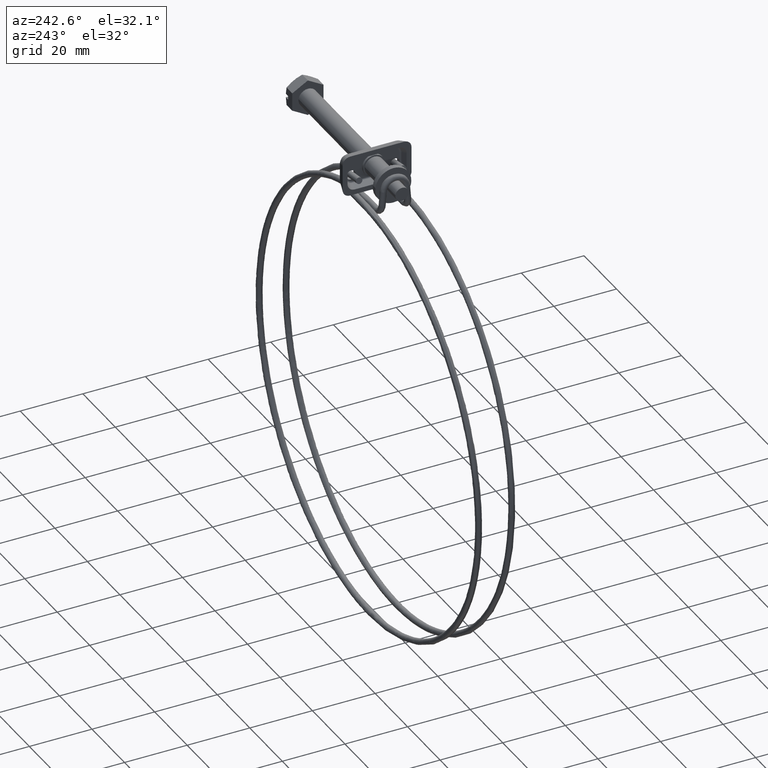
[diagram: clean part render]
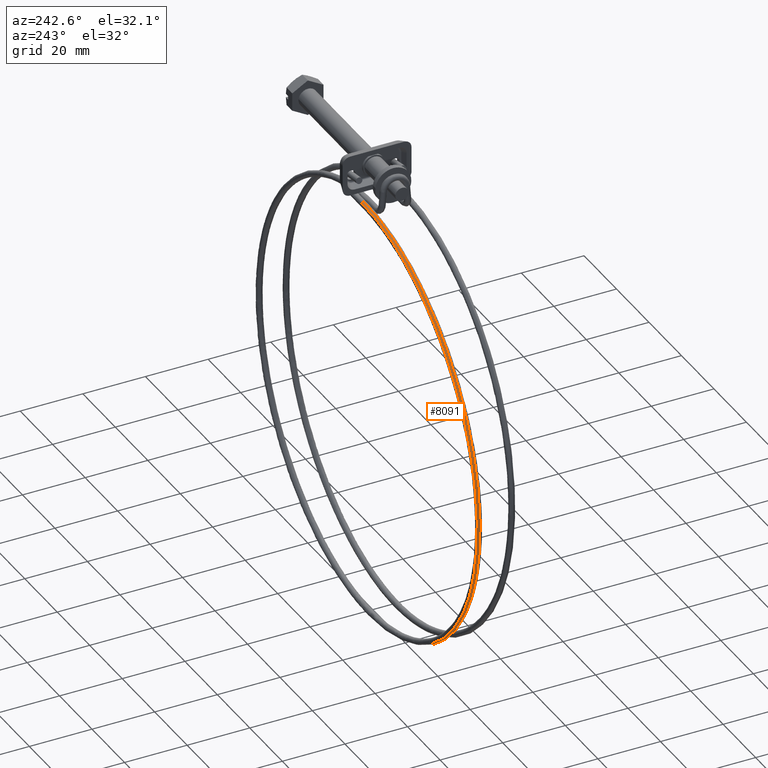
[diagram: same view with one face highlighted and labeled with its STEP entity id]
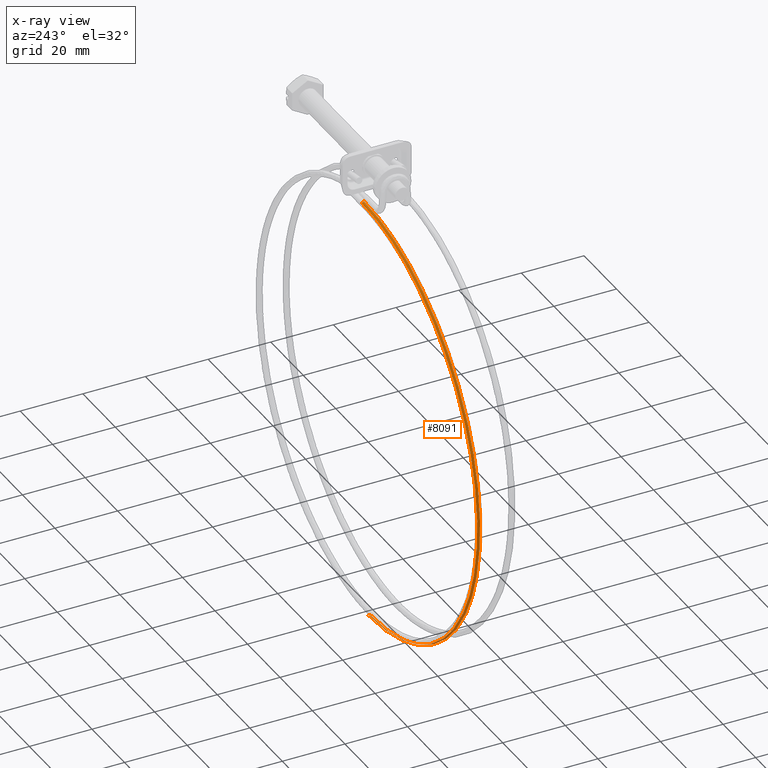
[diagram: x-ray of the same camera — body ghosted, the highlighted face saturated]
A machine part, auxiliary view. The second image highlights one B-rep face of the part: STEP entity #8091.
The next image is the same camera in x-ray: the body ghosted, the highlighted face saturated — about 0% of this face is hidden behind the body in this view.
In plain terms, the highlighted face is a freeform B-spline surface patch.
Its self-contained STEP definition (entity closure, byte-faithful):
#6027=CARTESIAN_POINT('',(-46.800000000001113,7.058718301789384,-7.187143854841273));
#6028=VERTEX_POINT('',#6027);
#6040=CARTESIAN_POINT('',(-46.800000000001113,6.339338735958525,-6.850431415097474));
#6041=VERTEX_POINT('',#6040);
#6042=CARTESIAN_POINT('',(-46.800000000001113,6.339338735958525,-6.850431415097474));
#6043=CARTESIAN_POINT('',(-46.800000000001113,6.601025441348690,-6.858111758452440));
#6044=CARTESIAN_POINT('',(-46.800000000001113,6.857939011329840,-6.973471516760230));
#6045=CARTESIAN_POINT('',(-46.800000000001113,7.044733017231790,-7.171561634227913));
#6046=CARTESIAN_POINT('',(-46.800000000001113,7.051790176536651,-7.179296910064643));
#6047=CARTESIAN_POINT('',(-46.800000000001113,7.058718301789313,-7.187143854841192));
#6048=B_SPLINE_CURVE_WITH_KNOTS('',3,(#6042,#6043,#6044,#6045,#6046,#6047),.UNSPECIFIED.,.F.,.U.,(4,2,4),(0.0,0.125000000000000,0.129999999999965),.UNSPECIFIED.);
#6049=EDGE_CURVE('',#6041,#6028,#6048,.T.);
#6728=CARTESIAN_POINT('',(-46.799999999998832,4.300002000001341,-145.850000999999990));
#6729=VERTEX_POINT('',#6728);
#6737=CARTESIAN_POINT('',(-46.799999999998832,5.028949982885202,-145.534537745304700));
#6738=VERTEX_POINT('',#6737);
#6739=CARTESIAN_POINT('',(-46.799999999998761,4.300002000001343,-145.850000999999990));
#6740=CARTESIAN_POINT('',(-46.799999999998747,4.561801387800491,-145.850001000000110));
#6741=CARTESIAN_POINT('',(-46.799999999998782,4.821988658764623,-145.742227903609890));
#6742=CARTESIAN_POINT('',(-46.799999999998782,5.014513586084808,-145.549702976289690));
#6743=CARTESIAN_POINT('',(-46.799999999998782,5.021794635740076,-145.542178063955110));
#6744=CARTESIAN_POINT('',(-46.799999999998782,5.028949982885187,-145.534537745304900));
#6745=B_SPLINE_CURVE_WITH_KNOTS('',3,(#6739,#6740,#6741,#6742,#6743,#6744),.UNSPECIFIED.,.F.,.U.,(4,2,4),(0.0,0.125000000000000,0.129999999999993),.UNSPECIFIED.);
#6746=EDGE_CURVE('',#6729,#6738,#6745,.T.);
#7927=CARTESIAN_POINT('',(-46.799999999998903,4.300002000001340,-145.850000999999990));
#7928=CARTESIAN_POINT('',(-55.899032411012463,4.300002481235882,-145.850000999875310));
#7929=CARTESIAN_POINT('',(-64.991502715377806,4.326541417004892,-144.041095449428010));
#7930=CARTESIAN_POINT('',(-81.801539032600957,4.428698620539128,-137.078141725315590));
#7931=CARTESIAN_POINT('',(-89.511003452659097,4.504276206803096,-131.926833569153590));
#7932=CARTESIAN_POINT('',(-102.376812641165800,4.693037538067994,-119.061011393708100));
#7933=CARTESIAN_POINT('',(-107.528096447832890,4.806147015522526,-111.351559391708510));
#7934=CARTESIAN_POINT('',(-114.491005628857910,5.052774964097260,-94.541594614845593));
#7935=CARTESIAN_POINT('',(-116.299892390311200,5.186196413664240,-85.447694751711353));
#7936=CARTESIAN_POINT('',(-116.299892390560100,5.453144322294270,-67.252737663387904));
#7937=CARTESIAN_POINT('',(-114.491005628858800,5.586565771863190,-58.158837800222898));
#7938=CARTESIAN_POINT('',(-107.528096447833900,5.833193720434034,-41.348873023422250));
#7939=CARTESIAN_POINT('',(-102.376812641416090,5.946303197890520,-33.639421021421683));
#7940=CARTESIAN_POINT('',(-89.511003452411700,6.135064529155420,-20.773598845914002));
#7941=CARTESIAN_POINT('',(-81.801539032665403,6.210642115413560,-15.622290689658071));
#7942=CARTESIAN_POINT('',(-64.991502715317807,6.312799318959466,-8.659336965794759));
#7943=CARTESIAN_POINT('',(-55.899032370692602,6.339698997477846,-6.850464863680401));
#7944=CARTESIAN_POINT('',(-46.800000000001113,6.339338735958525,-6.850431415097474));
#7945=B_SPLINE_CURVE_WITH_KNOTS('',3,(#7927,#7928,#7929,#7930,#7931,#7932,#7933,#7934,#7935,#7936,#7937,#7938,#7939,#7940,#7941,#7942,#7943,#7944),.UNSPECIFIED.,.F.,.U.,(4,2,2,2,2,2,2,2,4),(0.475350987641787,0.534770064741867,0.594189141841948,0.653608218942028,0.713027296042108,0.772446373142189,0.831865450242269,0.891284527342350,0.950703604442430),.UNSPECIFIED.);
#7946=EDGE_CURVE('',#6729,#6041,#7945,.T.);
#7952=CARTESIAN_POINT('',(-46.799999999998903,5.028949982885215,-145.534537745304590));
#7953=CARTESIAN_POINT('',(-55.856331321320233,5.028950461792921,-145.534537750304990));
#7954=CARTESIAN_POINT('',(-64.906131523301354,5.055364849920292,-143.734121421663590));
#7955=CARTESIAN_POINT('',(-81.637283337394138,5.157042660064676,-136.803842769311810));
#7956=CARTESIAN_POINT('',(-89.310571497898593,5.232265594295474,-131.676707414063200));
#7957=CARTESIAN_POINT('',(-102.116012060928500,5.420141224392043,-118.871253925047400));
#7958=CARTESIAN_POINT('',(-107.243127105831210,5.532720003293616,-111.197973914599200));
#7959=CARTESIAN_POINT('',(-114.173368775216700,5.778190860598096,-94.466875558103965));
#7960=CARTESIAN_POINT('',(-115.973769449143900,5.910986371520818,-85.415639175307902));
#7961=CARTESIAN_POINT('',(-115.973769449392900,6.176681913152489,-67.306042424840015));
#7962=CARTESIAN_POINT('',(-114.173368775162500,6.309477424075209,-58.254806042044287));
#7963=CARTESIAN_POINT('',(-107.243127105887200,6.554948281379689,-41.523707685549113));
#7964=CARTESIAN_POINT('',(-102.116012060951110,6.667527060279145,-33.850427675065582));
#7965=CARTESIAN_POINT('',(-89.310571497878840,6.855402690379976,-21.044974186118640));
#7966=CARTESIAN_POINT('',(-81.637283337520728,6.930625624603020,-15.917838830586730));
#7967=CARTESIAN_POINT('',(-64.906131523179113,7.032303434758657,-8.987560178731622));
#7968=CARTESIAN_POINT('',(-55.856331281248721,7.059077723735019,-7.187177068685294));
#7969=CARTESIAN_POINT('',(-46.800000000001113,7.058718301789456,-7.187143854841355));
#7970=B_SPLINE_CURVE_WITH_KNOTS('',3,(#7952,#7953,#7954,#7955,#7956,#7957,#7958,#7959,#7960,#7961,#7962,#7963,#7964,#7965,#7966,#7967,#7968,#7969),.UNSPECIFIED.,.F.,.U.,(4,2,2,2,2,2,2,2,4),(0.475350987641787,0.534770064741867,0.594189141841948,0.653608218942028,0.713027296042108,0.772446373142189,0.831865450242269,0.891284527342350,0.950703604442430),.UNSPECIFIED.);
#7971=EDGE_CURVE('',#6738,#6028,#7970,.T.);
#7976=CARTESIAN_POINT('',(-46.799999999998903,4.300002000001340,-145.850000999999990));
#7977=CARTESIAN_POINT('',(-46.799999999998903,4.561801387800490,-145.850000999999990));
#7978=CARTESIAN_POINT('',(-46.799999999998903,4.821988658764620,-145.742227903609600));
#7979=CARTESIAN_POINT('',(-46.799999999998903,5.014513586084815,-145.549702976289410));
#7980=CARTESIAN_POINT('',(-46.799999999998903,5.021794635740093,-145.542178063954790));
#7981=CARTESIAN_POINT('',(-46.799999999998903,5.028949982885215,-145.534537745304590));
#7982=CARTESIAN_POINT('',(-55.899032411012463,4.300002481235882,-145.850000999875310));
#7983=CARTESIAN_POINT('',(-55.898529541860697,4.561801868994510,-145.850001001742210));
#7984=CARTESIAN_POINT('',(-55.883919957177604,4.821989139159790,-145.742227907218590));
#7985=CARTESIAN_POINT('',(-55.858344505343567,5.014514065101018,-145.549702981192610));
#7986=CARTESIAN_POINT('',(-55.857345347188271,5.021795114702440,-145.542178068906990));
#7987=CARTESIAN_POINT('',(-55.856331321320233,5.028950461792921,-145.534537750304990));
#7988=CARTESIAN_POINT('',(-64.991502715377806,4.326541417004892,-144.041095449428010));
#7989=CARTESIAN_POINT('',(-64.990497342038211,4.588339338043389,-144.041195422773000));
#7990=CARTESIAN_POINT('',(-64.961288774520696,4.848483995964040,-143.936326797475400));
#7991=CARTESIAN_POINT('',(-64.910156430421964,5.040934325148134,-143.748886419866610));
#7992=CARTESIAN_POINT('',(-64.908158839179720,5.048212460472263,-143.741560146028690));
#7993=CARTESIAN_POINT('',(-64.906131523301354,5.055364849920292,-143.734121421663590));
#7994=CARTESIAN_POINT('',(-81.801539032600957,4.428698620539128,-137.078141725315590));
#7995=CARTESIAN_POINT('',(-81.799604676322801,4.690490896001410,-137.078626496432610));
#7996=CARTESIAN_POINT('',(-81.743406871839895,4.950471536136520,-136.984937193021010));
#7997=CARTESIAN_POINT('',(-81.645027330433109,5.142634736755957,-136.817067269763300));
#7998=CARTESIAN_POINT('',(-81.641183929278569,5.149901654806230,-136.810505556379810));
#7999=CARTESIAN_POINT('',(-81.637283337394123,5.157042660064676,-136.803842769311810));
#8000=CARTESIAN_POINT('',(-89.511003452659097,4.504276206803096,-131.926833569153590));
#8001=CARTESIAN_POINT('',(-89.508643066927888,4.766064305708720,-131.927603011077200));
#8002=CARTESIAN_POINT('',(-89.440068057676896,5.025923606576581,-131.842184095778010));
#8003=CARTESIAN_POINT('',(-89.320021055554520,5.217874391398689,-131.688792264522590));
#8004=CARTESIAN_POINT('',(-89.315331170036416,5.225133010984568,-131.682796167878910));
#8005=CARTESIAN_POINT('',(-89.310571497898579,5.232265594295474,-131.676707414063200));
#8006=CARTESIAN_POINT('',(-102.376812641165800,4.693037538067994,-119.061011393708100));
#8007=CARTESIAN_POINT('',(-102.373741324572800,4.954815206519549,-119.062491767240200));
#8008=CARTESIAN_POINT('',(-102.284512028801200,5.214371477032839,-118.997727159368000));
#8009=CARTESIAN_POINT('',(-102.128307755612200,5.405791778730144,-118.880492635611400));
#8010=CARTESIAN_POINT('',(-102.122205311187800,5.413029673890774,-118.875909099297300));
#8011=CARTESIAN_POINT('',(-102.116012060928500,5.420141224392043,-118.871253925047400));
#8012=CARTESIAN_POINT('',(-107.528096447832890,4.806147015522526,-111.351559391708510));
#8013=CARTESIAN_POINT('',(-107.524740507969400,5.067918434202170,-111.353465744408990));
#8014=CARTESIAN_POINT('',(-107.427242205935400,5.327293133582050,-111.301076881020190));
#8015=CARTESIAN_POINT('',(-107.256562260069900,5.518395577926550,-111.205507261760000));
#8016=CARTESIAN_POINT('',(-107.249894293421210,5.525621055329377,-111.201770109945500));
#8017=CARTESIAN_POINT('',(-107.243127105831210,5.532720003293617,-111.197973914599200));
#8018=CARTESIAN_POINT('',(-114.491005628857910,5.052774964097260,-94.541594614845593));
#8019=CARTESIAN_POINT('',(-114.487264980286990,5.314532756304290,-94.544429737549294));
#8020=CARTESIAN_POINT('',(-114.378589943082800,5.573511572972170,-94.519023924401296));
#8021=CARTESIAN_POINT('',(-114.188344070786700,5.763920987413978,-94.470690671880192));
#8022=CARTESIAN_POINT('',(-114.180911720577300,5.771119390163988,-94.468798906859178));
#8023=CARTESIAN_POINT('',(-114.173368775216700,5.778190860598096,-94.466875558103951));
#8024=CARTESIAN_POINT('',(-116.299892390311200,5.186196413664240,-85.447694751711353));
#8025=CARTESIAN_POINT('',(-116.296051805350000,5.447946834506579,-85.451032300614884));
#8026=CARTESIAN_POINT('',(-116.184473371094200,5.706711494963130,-85.440223204630996));
#8027=CARTESIAN_POINT('',(-115.989144829481010,5.896746008817287,-85.417442878186435));
#8028=CARTESIAN_POINT('',(-115.981513914235900,5.903929765297018,-85.416549391305296));
#8029=CARTESIAN_POINT('',(-115.973769449143900,5.910986371520818,-85.415639175307916));
#8030=CARTESIAN_POINT('',(-116.299892390560100,5.453144322294270,-67.252737663387904));
#8031=CARTESIAN_POINT('',(-116.296051805599010,5.714879994641250,-67.257080457839308));
#8032=CARTESIAN_POINT('',(-116.184473371343200,5.973216175129960,-67.275476215740795));
#8033=CARTESIAN_POINT('',(-115.989144829729990,6.162500594498004,-67.303821732332921));
#8034=CARTESIAN_POINT('',(-115.981513914484790,6.169655046978459,-67.304925582716251));
#8035=CARTESIAN_POINT('',(-115.973769449392900,6.176681913152489,-67.306042424840001));
#8036=CARTESIAN_POINT('',(-114.491005628858800,5.586565771863190,-58.158837800222898));
#8037=CARTESIAN_POINT('',(-114.487264980288000,5.848294072847421,-58.163683020905303));
#8038=CARTESIAN_POINT('',(-114.378589942959200,6.106416097120929,-58.196675495970901));
#8039=CARTESIAN_POINT('',(-114.188344070727790,6.295325615901312,-58.250573938639512));
#8040=CARTESIAN_POINT('',(-114.180911720520800,6.302465422111488,-58.252676067162710));
#8041=CARTESIAN_POINT('',(-114.173368775162500,6.309477424075209,-58.254806042044287));
#8042=CARTESIAN_POINT('',(-107.528096447833900,5.833193720434034,-41.348873023422250));
#8043=CARTESIAN_POINT('',(-107.524740507970410,6.094908394941760,-41.354647014045597));
#8044=CARTESIAN_POINT('',(-107.427242206060800,6.352634536511050,-41.414622539351903));
#8045=CARTESIAN_POINT('',(-107.256562260130490,6.540851025388740,-41.515757348759713));
#8046=CARTESIAN_POINT('',(-107.249894293479400,6.547963756946100,-41.519704864076417));
#8047=CARTESIAN_POINT('',(-107.243127105887100,6.554948281379689,-41.523707685549098));
#8048=CARTESIAN_POINT('',(-102.376812641416090,5.946303197890520,-33.639421021421683));
#8049=CARTESIAN_POINT('',(-102.373741324823200,6.208011622628280,-33.645620991275649));
#8050=CARTESIAN_POINT('',(-102.284512028927000,6.465556193060270,-33.717972261003297));
#8051=CARTESIAN_POINT('',(-102.128307755641000,6.653454824583138,-33.840771974875082));
#8052=CARTESIAN_POINT('',(-102.122205311213310,6.660555138382631,-33.845565874690323));
#8053=CARTESIAN_POINT('',(-102.116012060951110,6.667527060279145,-33.850427675065582));
#8054=CARTESIAN_POINT('',(-89.511003452411700,6.135064529155420,-20.773598845914002));
#8055=CARTESIAN_POINT('',(-89.508643066680492,6.396762523439110,-20.780509747314198));
#8056=CARTESIAN_POINT('',(-89.440068057553901,6.654004063516520,-20.873515324593448));
#8057=CARTESIAN_POINT('',(-89.320021055528613,6.841372211918635,-21.032472346028641));
#8058=CARTESIAN_POINT('',(-89.315331170013806,6.848451801293004,-21.038678806175550));
#8059=CARTESIAN_POINT('',(-89.310571497878840,6.855402690379975,-21.044974186118640));
#8060=CARTESIAN_POINT('',(-81.801539032665403,6.210642115413560,-15.622290689658071));
#8061=CARTESIAN_POINT('',(-81.799604676387204,6.472335933138650,-15.629486261896000));
#8062=CARTESIAN_POINT('',(-81.743406871966499,6.729456133948820,-15.730762227100900));
#8063=CARTESIAN_POINT('',(-81.645027330559699,6.916611866553596,-15.904197340506091));
#8064=CARTESIAN_POINT('',(-81.641183929405173,6.923683157463577,-15.910969417392019));
#8065=CARTESIAN_POINT('',(-81.637283337520728,6.930625624603020,-15.917838830586730));
#8066=CARTESIAN_POINT('',(-64.991502715317807,6.312799318959466,-8.659336965794759));
#8067=CARTESIAN_POINT('',(-64.990497341978198,6.574487491112230,-8.666917335804758));
#8068=CARTESIAN_POINT('',(-64.961288774398398,6.831443674136850,-8.779372623144290));
#8069=CARTESIAN_POINT('',(-64.910156430299722,7.018312278172928,-8.972378190900685));
#8070=CARTESIAN_POINT('',(-64.908158839057478,7.025372351808918,-8.979914828240489));
#8071=CARTESIAN_POINT('',(-64.906131523179113,7.032303434758657,-8.987560178731622));
#8072=CARTESIAN_POINT('',(-55.899032370692602,6.339698997477846,-6.850464863680401));
#8073=CARTESIAN_POINT('',(-55.898529501541503,6.601385693016330,-6.858145204300060));
#8074=CARTESIAN_POINT('',(-55.883919916974108,6.858298976405930,-6.973504882193140));
#8075=CARTESIAN_POINT('',(-55.858344465262427,7.045092478824555,-7.171594859131490));
#8076=CARTESIAN_POINT('',(-55.857345307111913,7.052149618454783,-7.179330129478958));
#8077=CARTESIAN_POINT('',(-55.856331281248721,7.059077723735018,-7.187177068685295));
#8078=CARTESIAN_POINT('',(-46.800000000001113,6.339338735958525,-6.850431415097474));
#8079=CARTESIAN_POINT('',(-46.800000000001113,6.601025441348690,-6.858111758452440));
#8080=CARTESIAN_POINT('',(-46.800000000001113,6.857939011329840,-6.973471516760230));
#8081=CARTESIAN_POINT('',(-46.800000000001113,7.044733017231840,-7.171561634227967));
#8082=CARTESIAN_POINT('',(-46.800000000001113,7.051790176536748,-7.179296910064751));
#8083=CARTESIAN_POINT('',(-46.800000000001113,7.058718301789456,-7.187143854841356));
#8084=B_SPLINE_SURFACE_WITH_KNOTS('',3,3,((#7976,#7982,#7988,#7994,#8000,#8006,#8012,#8018,#8024,#8030,#8036,#8042,#8048,#8054,#8060,#8066,#8072,#8078),(#7977,#7983,#7989,#7995,#8001,#8007,#8013,#8019,#8025,#8031,#8037,#8043,#8049,#8055,#8061,#8067,#8073,#8079),(#7978,#7984,#7990,#7996,#8002,#8008,#8014,#8020,#8026,#8032,#8038,#8044,#8050,#8056,#8062,#8068,#8074,#8080),(#7979,#7985,#7991,#7997,#8003,#8009,#8015,#8021,#8027,#8033,#8039,#8045,#8051,#8057,#8063,#8069,#8075,#8081),(#7980,#7986,#7992,#7998,#8004,#8010,#8016,#8022,#8028,#8034,#8040,#8046,#8052,#8058,#8064,#8070,#8076,#8082),(#7981,#7987,#7993,#7999,#8005,#8011,#8017,#8023,#8029,#8035,#8041,#8047,#8053,#8059,#8065,#8071,#8077,#8083)),.UNSPECIFIED.,.F.,.F.,.U.,(4,2,4),(4,2,2,2,2,2,2,2,4),(0.0,0.785398163397453,0.816814089933351),(0.0,27.297097233040709,54.594194466081809,81.891291699122547,109.188388932163210,136.485486165204410,163.782583398245090,191.079680631286290,218.376777864326900),.UNSPECIFIED.);
#8085=ORIENTED_EDGE('',*,*,#6049,.T.);
#8086=ORIENTED_EDGE('',*,*,#7971,.F.);
#8087=ORIENTED_EDGE('',*,*,#6746,.F.);
#8088=ORIENTED_EDGE('',*,*,#7946,.T.);
#8089=EDGE_LOOP('',(#8085,#8086,#8087,#8088));
#8090=FACE_OUTER_BOUND('',#8089,.T.);
#8091=ADVANCED_FACE('',(#8090),#8084,.F.);